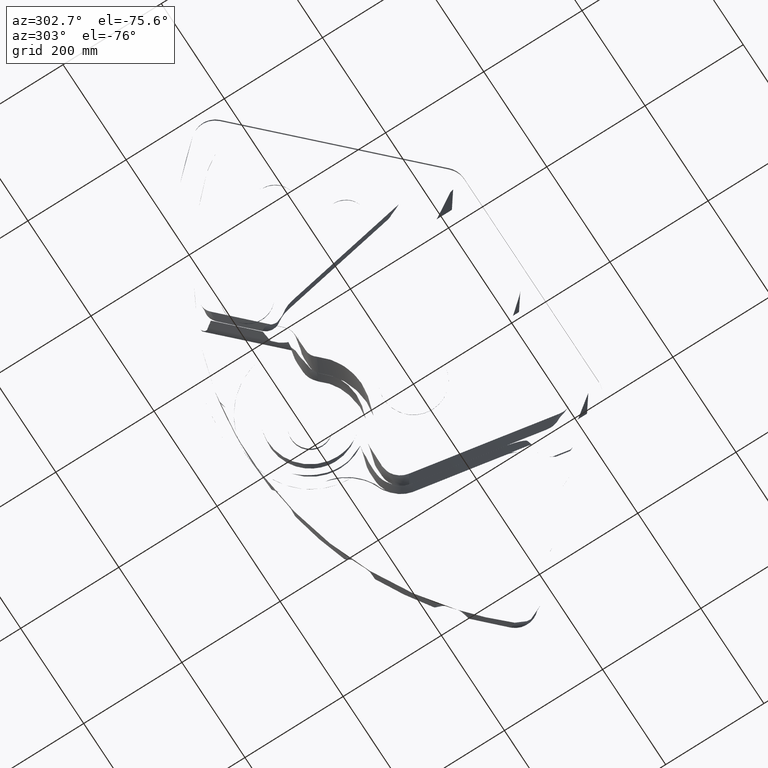
[diagram: clean part render]
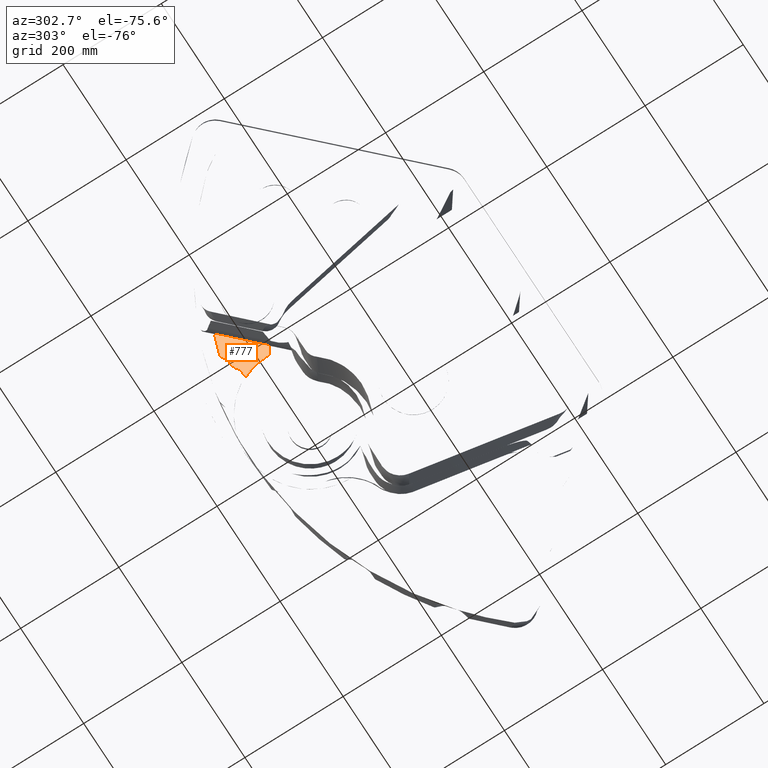
[diagram: same view with one face highlighted and labeled with its STEP entity id]
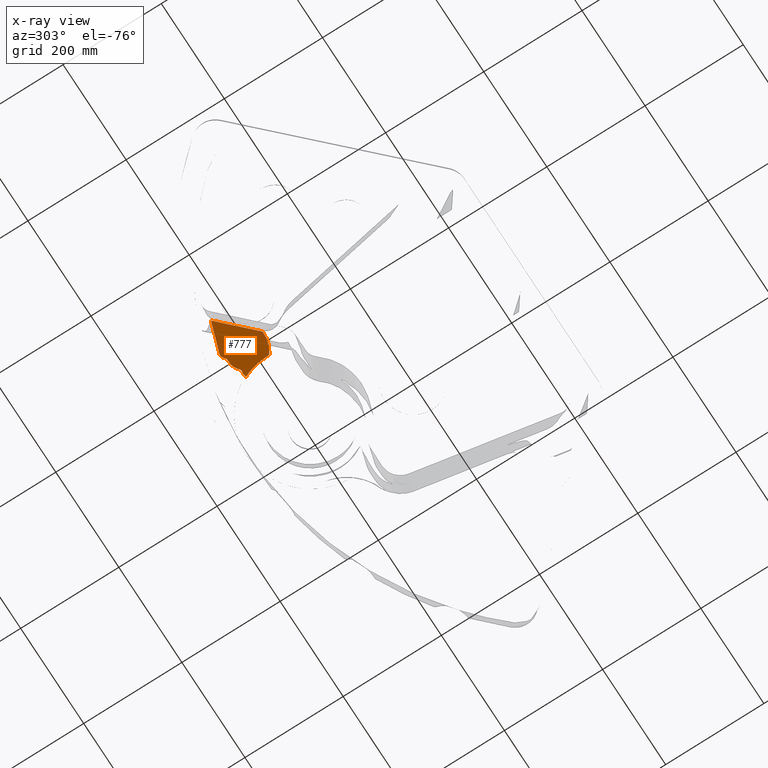
[diagram: x-ray of the same camera — body ghosted, the highlighted face saturated]
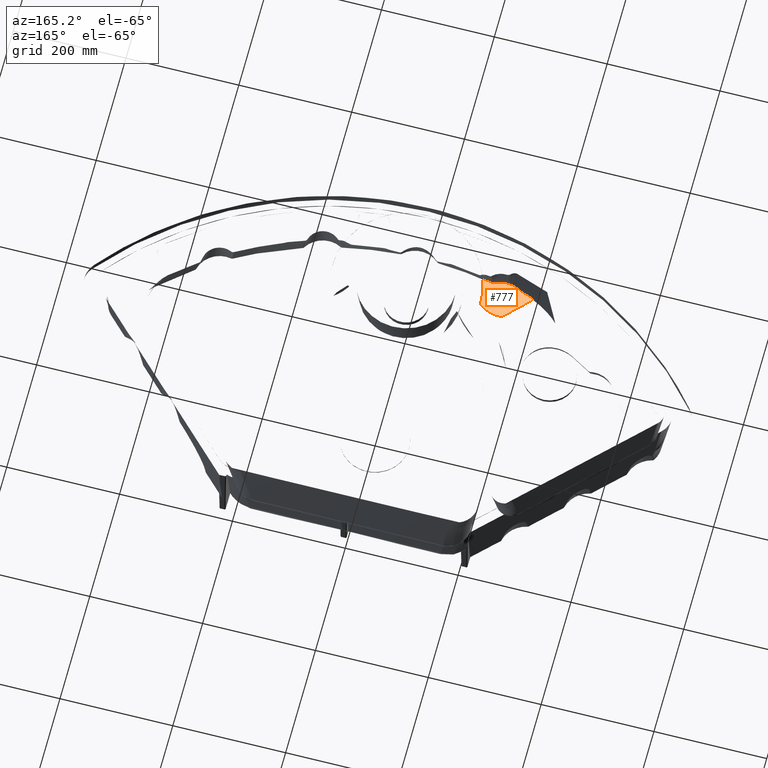
[diagram: same view with one face highlighted and labeled with its STEP entity id]
A machine part, auxiliary view. The second image highlights one B-rep face of the part: STEP entity #777.
The next image is the same camera in x-ray: the body ghosted, the highlighted face saturated — about 4% of this face is hidden behind the body in this view.
A second angle (auxiliary view) of the same face is appended — the face is thin or edge-on in the first view.
In plain terms, the highlighted planar face has unit normal (0, -0.0234, 0.9997).
Its self-contained STEP definition (entity closure, byte-faithful):
#308=PLANE('',#8748);
#320=LINE('',#9415,#355);
#355=VECTOR('',#8922,1.);
#777=ADVANCED_FACE('',(#1351),#308,.T.);
#1351=FACE_OUTER_BOUND('',#1869,.T.);
#1869=EDGE_LOOP('',(#2513,#2514,#2515,#2516,#2517,#2518,#2519,#2520,#2521,
#2522));
#2513=ORIENTED_EDGE('',*,*,#5993,.T.);
#2514=ORIENTED_EDGE('',*,*,#5994,.T.);
#2515=ORIENTED_EDGE('',*,*,#5995,.F.);
#2516=ORIENTED_EDGE('',*,*,#5996,.F.);
#2517=ORIENTED_EDGE('',*,*,#5997,.F.);
#2518=ORIENTED_EDGE('',*,*,#5998,.F.);
#2519=ORIENTED_EDGE('',*,*,#5999,.T.);
#2520=ORIENTED_EDGE('',*,*,#6000,.T.);
#2521=ORIENTED_EDGE('',*,*,#6001,.T.);
#2522=ORIENTED_EDGE('',*,*,#6002,.T.);
#5042=VERTEX_POINT('',#9374);
#5043=VERTEX_POINT('',#9375);
#5044=VERTEX_POINT('',#9380);
#5045=VERTEX_POINT('',#9385);
#5046=VERTEX_POINT('',#9390);
#5047=VERTEX_POINT('',#9397);
#5048=VERTEX_POINT('',#9402);
#5049=VERTEX_POINT('',#9409);
#5050=VERTEX_POINT('',#9414);
#5051=VERTEX_POINT('',#9416);
#5993=EDGE_CURVE('',#5042,#5043,#7455,.T.);
#5994=EDGE_CURVE('',#5043,#5044,#7456,.T.);
#5995=EDGE_CURVE('',#5045,#5044,#7457,.T.);
#5996=EDGE_CURVE('',#5046,#5045,#7458,.T.);
#5997=EDGE_CURVE('',#5047,#5046,#7459,.T.);
#5998=EDGE_CURVE('',#5048,#5047,#7460,.T.);
#5999=EDGE_CURVE('',#5048,#5049,#7461,.T.);
#6000=EDGE_CURVE('',#5049,#5050,#7462,.T.);
#6001=EDGE_CURVE('',#5050,#5051,#320,.T.);
#6002=EDGE_CURVE('',#5051,#5042,#7463,.T.);
#7455=B_SPLINE_CURVE_WITH_KNOTS('',3,(#9358,#9359,#9360,#9361,#9362,#9363,
#9364,#9365,#9366,#9367,#9368,#9369,#9370,#9371,#9372,#9373),.UNSPECIFIED.,
 .F.,.F.,(4,2,2,1,2,2,1,2,4),(0.,0.0625000000000009,0.0781249999999997,0.0937499999999985,
0.124999999999998,0.249999999999998,0.499999999999999,0.75,1.),.UNSPECIFIED.);
#7456=B_SPLINE_CURVE_WITH_KNOTS('',3,(#9376,#9377,#9378,#9379),.UNSPECIFIED.,
 .F.,.F.,(4,4),(0.,1.),.UNSPECIFIED.);
#7457=B_SPLINE_CURVE_WITH_KNOTS('',3,(#9381,#9382,#9383,#9384),.UNSPECIFIED.,
 .F.,.F.,(4,4),(0.,1.),.UNSPECIFIED.);
#7458=B_SPLINE_CURVE_WITH_KNOTS('',3,(#9386,#9387,#9388,#9389),.UNSPECIFIED.,
 .F.,.F.,(4,4),(0.,1.),.UNSPECIFIED.);
#7459=B_SPLINE_CURVE_WITH_KNOTS('',3,(#9391,#9392,#9393,#9394,#9395,#9396),
 .UNSPECIFIED.,.F.,.F.,(4,2,4),(0.,0.5,1.),.UNSPECIFIED.);
#7460=B_SPLINE_CURVE_WITH_KNOTS('',3,(#9398,#9399,#9400,#9401),.UNSPECIFIED.,
 .F.,.F.,(4,4),(0.,1.),.UNSPECIFIED.);
#7461=B_SPLINE_CURVE_WITH_KNOTS('',3,(#9403,#9404,#9405,#9406,#9407,#9408),
 .UNSPECIFIED.,.F.,.F.,(4,2,4),(0.,0.5,1.),.UNSPECIFIED.);
#7462=B_SPLINE_CURVE_WITH_KNOTS('',3,(#9410,#9411,#9412,#9413),.UNSPECIFIED.,
 .F.,.F.,(4,4),(0.,1.),.UNSPECIFIED.);
#7463=B_SPLINE_CURVE_WITH_KNOTS('',3,(#9417,#9418,#9419,#9420,#9421,#9422,
#9423,#9424),.UNSPECIFIED.,.F.,.F.,(4,2,2,4),(0.,0.25,0.500000000000001,
1.),.UNSPECIFIED.);
#8748=AXIS2_PLACEMENT_3D('',#9425,#8923,#8924);
#8922=DIRECTION('',(0.705777782120901,-0.708239649652819,-0.0165626363890229));
#8923=DIRECTION('',(0.,-0.0233792464170268,0.999726668063312));
#8924=DIRECTION('',(0.,-0.999726668063312,-0.0233792464170268));
#9358=CARTESIAN_POINT('',(-131.480385676344,209.246957090276,-11.1242398709268));
#9359=CARTESIAN_POINT('',(-131.476799542381,210.612726748785,-11.0923004754748));
#9360=CARTESIAN_POINT('',(-131.469840371817,211.603340759839,-11.06913433436));
#9361=CARTESIAN_POINT('',(-131.456925112858,212.372663714338,-11.051143225888));
#9362=CARTESIAN_POINT('',(-131.450149472369,212.711360322873,-11.0432225894535));
#9363=CARTESIAN_POINT('',(-131.435955599095,213.31083822092,-11.0292034160657));
#9364=CARTESIAN_POINT('',(-131.411801312565,214.209285658555,-11.0081926491149));
#9365=CARTESIAN_POINT('',(-131.379056596181,215.105424867878,-10.9872358615568));
#9366=CARTESIAN_POINT('',(-131.250817697445,218.087426169376,-10.9174998572361));
#9367=CARTESIAN_POINT('',(-131.089344279487,220.435757692533,-10.8625826252539));
#9368=CARTESIAN_POINT('',(-130.405986535249,227.581883077835,-10.6954659206115));
#9369=CARTESIAN_POINT('',(-128.989746625615,236.98834654773,-10.4754897667279));
#9370=CARTESIAN_POINT('',(-126.563314214678,246.151402596608,-10.2612058507904));
#9371=CARTESIAN_POINT('',(-123.631785553089,255.192754934977,-10.0497680538259));
#9372=CARTESIAN_POINT('',(-121.903521043804,259.676374417457,-9.94491574962151));
#9373=CARTESIAN_POINT('',(-119.951961428697,264.029141361093,-9.84312351558188));
#9374=CARTESIAN_POINT('',(-131.482697906459,209.245115905065,-11.1242829282185));
#9375=CARTESIAN_POINT('',(-119.95136806467,264.028881951735,-9.84312958203533));
#9376=CARTESIAN_POINT('',(-119.951961429093,264.029141361265,-9.84312351557785));
#9377=CARTESIAN_POINT('',(-123.402872427012,265.528181538969,-9.80806750394673));
#9378=CARTESIAN_POINT('',(-127.332105623017,265.844354349414,-9.80067360091114));
#9379=CARTESIAN_POINT('',(-131.059197454324,265.023329724774,-9.81987378594881));
#9380=CARTESIAN_POINT('',(-131.059499791669,265.02326460118,-9.81987530890564));
#9381=CARTESIAN_POINT('',(-132.013049705739,264.812373147157,-9.82480714020348));
#9382=CARTESIAN_POINT('',(-131.695375305401,264.882900269283,-9.8231578184239));
#9383=CARTESIAN_POINT('',(-131.37762611316,264.953175712759,-9.82151438231022));
#9384=CARTESIAN_POINT('',(-131.059802129014,265.023199477586,-9.81987683186246));
#9385=CARTESIAN_POINT('',(-132.011826729781,264.812644424263,-9.82480079621516));
#9386=CARTESIAN_POINT('',(-136.520487783922,266.133866309784,-9.79390317887641));
#9387=CARTESIAN_POINT('',(-135.356957142012,264.976240206736,-9.82097500439284));
#9388=CARTESIAN_POINT('',(-133.612510733856,264.457284618216,-9.83311111216219));
#9389=CARTESIAN_POINT('',(-132.010603753822,264.812915701369,-9.82479445222684));
#9390=CARTESIAN_POINT('',(-136.520517075611,266.133897082305,-9.79390245924136));
#9391=CARTESIAN_POINT('',(-159.989834157249,274.777265719824,-9.59177176521753));
#9392=CARTESIAN_POINT('',(-155.721878797456,275.108706184612,-9.58402081833735));
#9393=CARTESIAN_POINT('',(-151.341772362822,274.501726463071,-9.59821542665719));
#9394=CARTESIAN_POINT('',(-143.270287948462,271.529741959444,-9.66771718176438));
#9395=CARTESIAN_POINT('',(-139.575043725939,269.173039599476,-9.7228301711098));
#9396=CARTESIAN_POINT('',(-136.520546367301,266.133927854826,-9.79390173960631));
#9397=CARTESIAN_POINT('',(-159.985093971059,274.777630128837,-9.59176324328011));
#9398=CARTESIAN_POINT('',(-167.96389102845,277.914054783451,-9.51841595025379));
#9399=CARTESIAN_POINT('',(-165.953088921177,275.732802575166,-9.56942592578437));
#9400=CARTESIAN_POINT('',(-162.947967633921,274.548423260379,-9.59712339223816));
#9401=CARTESIAN_POINT('',(-159.980353784869,274.777994537849,-9.59175472134269));
#9402=CARTESIAN_POINT('',(-167.963919928439,277.914090657935,-9.51841511130607));
#9403=CARTESIAN_POINT('',(-167.963948828427,277.91412653242,-9.51841427235835));
#9404=CARTESIAN_POINT('',(-169.236012947094,279.293944652811,-9.48614634465587));
#9405=CARTESIAN_POINT('',(-170.913967347983,280.303632119055,-9.46253415861382));
#9406=CARTESIAN_POINT('',(-174.556924225375,281.286804434984,-9.43954204629074));
#9407=CARTESIAN_POINT('',(-176.504381563076,281.264062202158,-9.44007388792535));
#9408=CARTESIAN_POINT('',(-178.322118562933,280.735002533308,-9.45244628606424));
#9409=CARTESIAN_POINT('',(-178.322133027207,280.734997297125,-9.45244640851573));
#9410=CARTESIAN_POINT('',(-178.322147491481,280.734992060942,-9.45244653096722));
#9411=CARTESIAN_POINT('',(-197.91860204147,275.031297225529,-9.58583107626795));
#9412=CARTESIAN_POINT('',(-217.191423279391,268.395192502643,-9.74102062209261));
#9413=CARTESIAN_POINT('',(-236.140611205246,260.826677892285,-9.91801516844118));
#9414=CARTESIAN_POINT('',(-236.140611850409,260.826678539698,-9.91801515330102));
#9415=CARTESIAN_POINT('',(-449.228298999885,474.657650150281,-4.91744135990543));
#9416=CARTESIAN_POINT('',(-172.174681077741,196.63762421156,-11.4191171708361));
#9417=CARTESIAN_POINT('',(-172.174680056067,196.637623186322,-11.4191171948119));
#9418=CARTESIAN_POINT('',(-168.557264260302,196.390438876917,-11.4248977577044));
#9419=CARTESIAN_POINT('',(-164.9562423513,196.467817928285,-11.4230881991848));
#9420=CARTESIAN_POINT('',(-157.68447232573,197.301082401301,-11.4036017774782));
#9421=CARTESIAN_POINT('',(-154.09894375224,198.055490330152,-11.3859594664036));
#9422=CARTESIAN_POINT('',(-143.720715318983,201.261027501345,-11.3109959330516));
#9423=CARTESIAN_POINT('',(-137.14298475412,204.734211071433,-11.2297733177802));
#9424=CARTESIAN_POINT('',(-131.480385676344,209.246957090275,-11.1242398709268));
#9425=CARTESIAN_POINT('',(-560.,364.331331878126,-7.4974927515171));